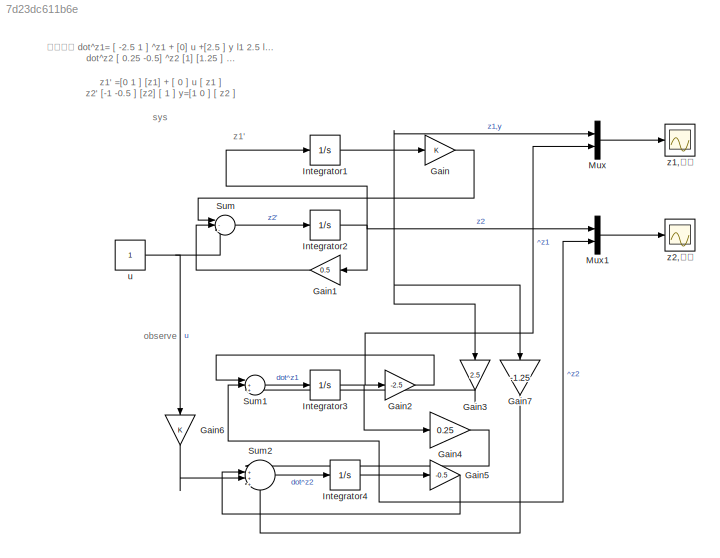
MODEL slx_7d23dc611b6e
KIND model
CONFIG AbsTol = auto
CONFIG EnableMultiTasking = off
CONFIG FixedStep = auto
CONFIG MaxStep = auto
CONFIG MinStep = auto
CONFIG RelTol = 1e-3
CONFIG SampleTimeConstraint = Unconstrained
CONFIG SolverName = VariableStepAuto
CONFIG StartTime = 0.0
CONFIG StopTime = 20
BLOCK [Gain] Gain
BLOCK [Gain] Gain1
  Gain = 0.5
BLOCK [Gain] Gain2
  Gain = -2.5
BLOCK [Gain] Gain3
  Gain = 2.5
  NameLocation = left
BLOCK [Gain] Gain4
  Gain = 0.25
BLOCK [Gain] Gain5
  Gain = -0.5
BLOCK [Gain] Gain6
  NameLocation = left
BLOCK [Gain] Gain7
  Gain = -1.25
  NameLocation = left
BLOCK [Integrator] Integrator1
  Ports = [1, 1]
BLOCK [Integrator] Integrator2
  Ports = [1, 1]
BLOCK [Integrator] Integrator3
  InitialCondition = 1
  Ports = [1, 1]
BLOCK [Integrator] Integrator4
  InitialCondition = 1
  Ports = [1, 1]
BLOCK [Mux] Mux
  DisplayOption = bar
  Inputs = 2
  Ports = [2, 1]
BLOCK [Mux] Mux1
  DisplayOption = bar
  Inputs = 2
  Ports = [2, 1]
BLOCK [Sum] Sum
  Inputs = |--+
  Ports = [3, 1]
BLOCK [Sum] Sum1
  Inputs = |+++
  Ports = [3, 1]
BLOCK [Sum] Sum2
  Inputs = |++++
  Ports = [4, 1]
BLOCK [Constant] u
BLOCK [Scope] z1,位移
  Floating = off
  NumInputPorts = 1
  Ports = [1]
  ScopeSpecificationString = Simulink.scopes.TimeScopeBlockCfg('CurrentConfiguration', extmgr.ConfigurationSet(extmgr.Configuration('Core','General UI',true),extmgr.Configuration('Core','Source UI',true),extmgr.Configuration('Sources','WiredSimulink',true),extmgr.Configuration('Visuals','Time Domain',true,'SerializedDisplays',{struct('MinYLimReal','-0.19835','MaxYLimReal','1.78512','YLabelReal','','MinYLimMag','0.00000','MaxY...<+1328ch>
BLOCK [Scope] z2,速度
  Floating = off
  NumInputPorts = 1
  Ports = [1]
  ScopeSpecificationString = Simulink.scopes.TimeScopeBlockCfg('CurrentConfiguration', extmgr.ConfigurationSet(extmgr.Configuration('Core','General UI',true),extmgr.Configuration('Core','Source UI',true),extmgr.Configuration('Sources','WiredSimulink',true,'DataLoggingVariableName','ScopeData1'),extmgr.Configuration('Visuals','Time Domain',true,'SerializedDisplays',{struct('MinYLimReal','-0.52482','MaxYLimReal','1.58601','YLab...<+1365ch>
ANNOTATION (root): observe
ANNOTATION (root): sys
ANNOTATION (root): z1'
ANNOTATION (root): z1' =[0 1 ] [z1] + [ 0 ] u [ z1 ] z2' [-1 -0.5 ] [z2] [ 1 ] y=[1 0 ] [ z2 ]
ANNOTATION (root): 观测器： dot^z1= [ -2.5 1 ] ^z1 + [0] u +[2.5 ] y l1 2.5 l2 1.25 dot^z2 [ 0.25 -0.5] ^z2 [1] [1.25 ] 估计^z2，^z1初始值1
LINE Gain1:1 -> Sum:2
LINE Gain2:1 -> Sum1:1
LINE Gain3:1 -> Sum1:3
LINE Gain4:1 -> Sum2:1
LINE Gain5:1 -> Sum2:2
LINE Gain6:1 -> Sum2:3
LINE Gain7:1 -> Sum2:4
LINE Gain:1 -> Sum:1
NET Integrator1:1 -> Gain3:1, Gain7:1, Gain:1, Mux:1
NET Integrator2:1 -> Gain1:1, Integrator1:1, Mux1:1
NET Integrator3:1 -> Gain2:1, Gain4:1, Mux:2
NET Integrator4:1 -> Gain5:1, Mux1:2, Sum1:2
LINE Mux1:1 -> z2,速度:1
LINE Mux:1 -> z1,位移:1
LINE Sum1:1 -> Integrator3:1
LINE Sum2:1 -> Integrator4:1
LINE Sum:1 -> Integrator2:1
NET u:1 -> Gain6:1, Sum:3
note: NET lines group one-source signal fan-out (src -> all destinations, sorted); 1:1 wires keep LINE
